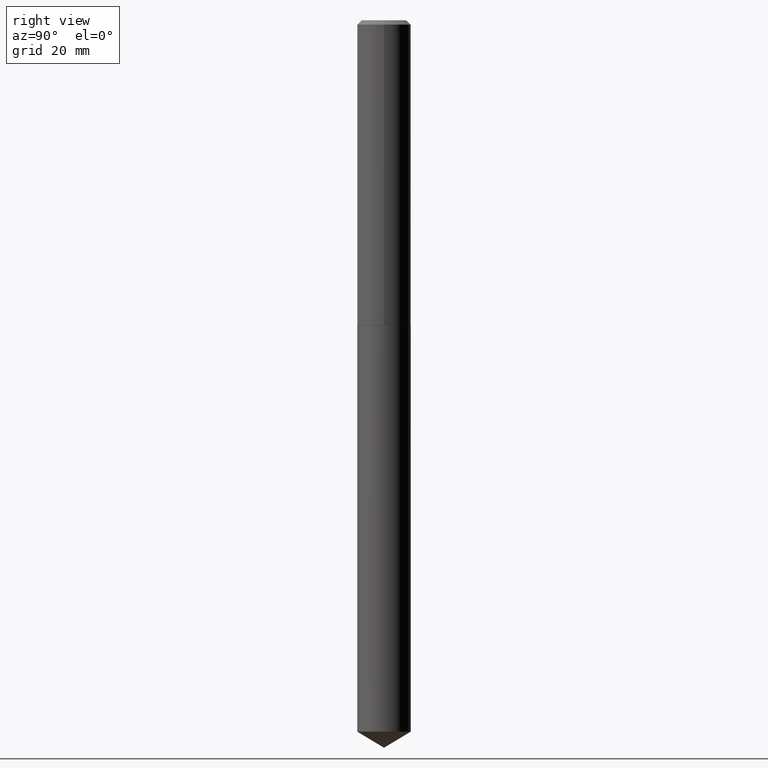
[diagram: clean part render]
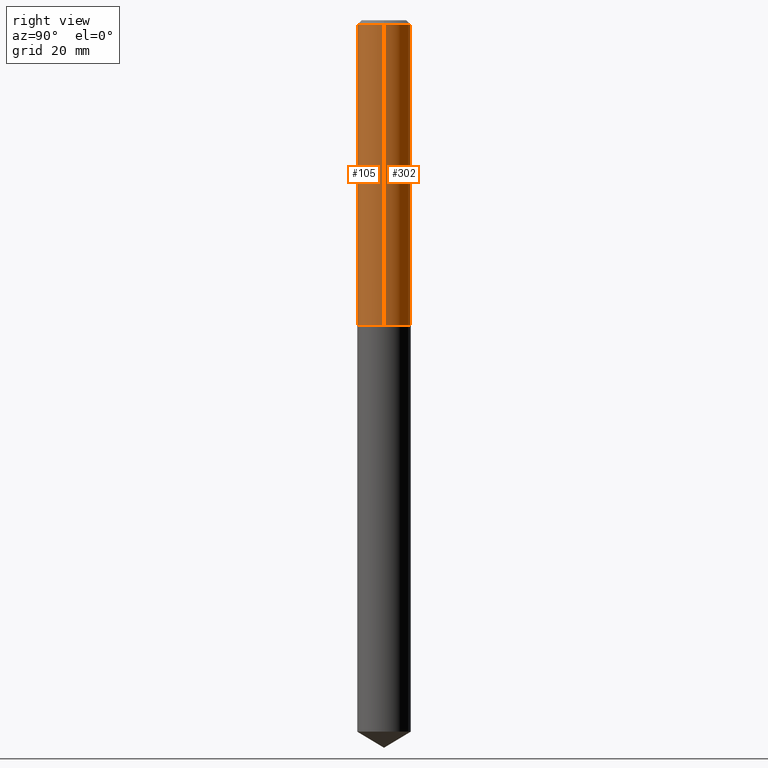
[diagram: same view with one multi-face feature highlighted, each face labeled with its STEP entity id]
A machine part, right view. The highlighted faces form ONE feature: a constant-radius fillet chain: 2 tangent blend faces with common blend radius 4.8997 mm. The faces share edges in the B-rep.
Their STEP definitions:
[1] entity #105 (Cylinder):
#14 = CARTESIAN_POINT ( 'NONE',  ( 0.1929000000000000992, -1.347013500525681457E-15, 9.406145000510366209E-30 ) ) ;
#15 = VERTEX_POINT ( 'NONE', #353 ) ;
#19 = CARTESIAN_POINT ( 'NONE',  ( 0.1928999999999999881, -1.456122292364529769E-15, -0.03125000000000022898 ) ) ;
#40 = CARTESIAN_POINT ( 'NONE',  ( 0.000000000000000000, 0.000000000000000000, 0.000000000000000000 ) ) ;
#43 = DIRECTION ( 'NONE',  ( -2.445468806185136597E-29, 3.491481338843145583E-15, 1.000000000000000000 ) ) ;
#47 = VECTOR ( 'NONE', #106, 39.37007874015748143 ) ;
#56 = EDGE_CURVE ( 'NONE', #15, #255, #285, .T. ) ;
#65 = VECTOR ( 'NONE', #379, 39.37007874015748143 ) ;
#79 = LINE ( 'NONE', #14, #47 ) ;
#94 = AXIS2_PLACEMENT_3D ( 'NONE', #40, #371, #100 ) ;
#99 = ORIENTED_EDGE ( 'NONE', *, *, #331, .T. ) ;
#100 = DIRECTION ( 'NONE',  ( 1.000000000000000000, -6.982962677686265922E-15, 4.876176775795936353E-29 ) ) ;
#105 = ADVANCED_FACE ( 'NONE', ( #189 ), #308, .T. ) ;
#106 = DIRECTION ( 'NONE',  ( -2.445468806185136877E-29, 3.491481338843145188E-15, 1.000000000000000000 ) ) ;
#135 = DIRECTION ( 'NONE',  ( 1.000000000000000000, -6.982962677686267499E-15, 0.000000000000000000 ) ) ;
#160 = CARTESIAN_POINT ( 'NONE',  ( 7.642090019328607917E-31, -1.091087918388491006E-16, -0.03125000000000022898 ) ) ;
#182 = EDGE_CURVE ( 'NONE', #378, #320, #368, .T. ) ;
#185 = AXIS2_PLACEMENT_3D ( 'NONE', #377, #43, #252 ) ;
#189 = FACE_OUTER_BOUND ( 'NONE', #289, .T. ) ;
#190 = ORIENTED_EDGE ( 'NONE', *, *, #56, .F. ) ;
#215 = AXIS2_PLACEMENT_3D ( 'NONE', #160, #245, #135 ) ;
#226 = ORIENTED_EDGE ( 'NONE', *, *, #324, .F. ) ;
#245 = DIRECTION ( 'NONE',  ( -2.445468806185136597E-29, 3.491481338843145583E-15, 1.000000000000000000 ) ) ;
#252 = DIRECTION ( 'NONE',  ( 1.000000000000000000, -6.982962677686270655E-15, 0.000000000000000000 ) ) ;
#254 = CARTESIAN_POINT ( 'NONE',  ( -0.1929000000000000992, 1.370636937281233963E-15, -9.488625789101718769E-30 ) ) ;
#255 = VERTEX_POINT ( 'NONE', #19 ) ;
#259 = LINE ( 'NONE', #254, #65 ) ;
#285 = CIRCLE ( 'NONE', #215, 0.1928999999999999881 ) ;
#287 = CARTESIAN_POINT ( 'NONE',  ( 0.1929000000000002379, -9.015353965026886084E-15, -2.196300000000000363 ) ) ;
#289 = EDGE_LOOP ( 'NONE', ( #226, #350, #99, #190 ) ) ;
#299 = CARTESIAN_POINT ( 'NONE',  ( -0.1929000000000002379, -6.297703527219967311E-15, -2.196300000000000363 ) ) ;
#308 = CYLINDRICAL_SURFACE ( 'NONE', #94, 0.1929000000000000992 ) ;
#320 = VERTEX_POINT ( 'NONE', #287 ) ;
#324 = EDGE_CURVE ( 'NONE', #378, #15, #259, .T. ) ;
#331 = EDGE_CURVE ( 'NONE', #320, #255, #79, .T. ) ;
#350 = ORIENTED_EDGE ( 'NONE', *, *, #182, .T. ) ;
#353 = CARTESIAN_POINT ( 'NONE',  ( -0.1928999999999999881, -2.518087690888790534E-15, -0.03125000000000022898 ) ) ;
#368 = CIRCLE ( 'NONE', #185, 0.1929000000000002379 ) ;
#371 = DIRECTION ( 'NONE',  ( -2.445468806185136597E-29, 3.491481338843145583E-15, 1.000000000000000000 ) ) ;
#377 = CARTESIAN_POINT ( 'NONE',  ( 5.370983139024416921E-29, -7.668340464501203443E-15, -2.196300000000000363 ) ) ;
#378 = VERTEX_POINT ( 'NONE', #299 ) ;
#379 = DIRECTION ( 'NONE',  ( -2.445468806185136877E-29, 3.491481338843145188E-15, 1.000000000000000000 ) ) ;
[2] entity #302 (Cylinder):
#11 = CARTESIAN_POINT ( 'NONE',  ( 5.370983139024416921E-29, -7.668340464501203443E-15, -2.196300000000000363 ) ) ;
#14 = CARTESIAN_POINT ( 'NONE',  ( 0.1929000000000000992, -1.347013500525681457E-15, 9.406145000510366209E-30 ) ) ;
#15 = VERTEX_POINT ( 'NONE', #353 ) ;
#18 = ORIENTED_EDGE ( 'NONE', *, *, #74, .T. ) ;
#19 = CARTESIAN_POINT ( 'NONE',  ( 0.1928999999999999881, -1.456122292364529769E-15, -0.03125000000000022898 ) ) ;
#41 = ORIENTED_EDGE ( 'NONE', *, *, #331, .F. ) ;
#47 = VECTOR ( 'NONE', #106, 39.37007874015748143 ) ;
#65 = VECTOR ( 'NONE', #379, 39.37007874015748143 ) ;
#74 = EDGE_CURVE ( 'NONE', #320, #378, #221, .T. ) ;
#79 = LINE ( 'NONE', #14, #47 ) ;
#93 = DIRECTION ( 'NONE',  ( 1.000000000000000000, -6.982962677686267499E-15, 0.000000000000000000 ) ) ;
#106 = DIRECTION ( 'NONE',  ( -2.445468806185136877E-29, 3.491481338843145188E-15, 1.000000000000000000 ) ) ;
#107 = EDGE_LOOP ( 'NONE', ( #18, #229, #376, #41 ) ) ;
#161 = CIRCLE ( 'NONE', #359, 0.1928999999999999881 ) ;
#163 = DIRECTION ( 'NONE',  ( -2.445468806185136597E-29, 3.491481338843145583E-15, 1.000000000000000000 ) ) ;
#171 = DIRECTION ( 'NONE',  ( -2.445468806185136597E-29, 3.491481338843145583E-15, 1.000000000000000000 ) ) ;
#195 = FACE_OUTER_BOUND ( 'NONE', #107, .T. ) ;
#221 = CIRCLE ( 'NONE', #389, 0.1929000000000002379 ) ;
#227 = AXIS2_PLACEMENT_3D ( 'NONE', #279, #171, #230 ) ;
#229 = ORIENTED_EDGE ( 'NONE', *, *, #324, .T. ) ;
#230 = DIRECTION ( 'NONE',  ( 1.000000000000000000, -6.982962677686265922E-15, 4.876176775795936353E-29 ) ) ;
#244 = CARTESIAN_POINT ( 'NONE',  ( 7.642090019328607917E-31, -1.091087918388491006E-16, -0.03125000000000022898 ) ) ;
#251 = DIRECTION ( 'NONE',  ( 1.000000000000000000, -6.982962677686270655E-15, 0.000000000000000000 ) ) ;
#254 = CARTESIAN_POINT ( 'NONE',  ( -0.1929000000000000992, 1.370636937281233963E-15, -9.488625789101718769E-30 ) ) ;
#255 = VERTEX_POINT ( 'NONE', #19 ) ;
#259 = LINE ( 'NONE', #254, #65 ) ;
#279 = CARTESIAN_POINT ( 'NONE',  ( 0.000000000000000000, 0.000000000000000000, 0.000000000000000000 ) ) ;
#287 = CARTESIAN_POINT ( 'NONE',  ( 0.1929000000000002379, -9.015353965026886084E-15, -2.196300000000000363 ) ) ;
#299 = CARTESIAN_POINT ( 'NONE',  ( -0.1929000000000002379, -6.297703527219967311E-15, -2.196300000000000363 ) ) ;
#302 = ADVANCED_FACE ( 'NONE', ( #195 ), #337, .T. ) ;
#320 = VERTEX_POINT ( 'NONE', #287 ) ;
#324 = EDGE_CURVE ( 'NONE', #378, #15, #259, .T. ) ;
#331 = EDGE_CURVE ( 'NONE', #320, #255, #79, .T. ) ;
#337 = CYLINDRICAL_SURFACE ( 'NONE', #227, 0.1929000000000000992 ) ;
#353 = CARTESIAN_POINT ( 'NONE',  ( -0.1928999999999999881, -2.518087690888790534E-15, -0.03125000000000022898 ) ) ;
#359 = AXIS2_PLACEMENT_3D ( 'NONE', #244, #363, #93 ) ;
#363 = DIRECTION ( 'NONE',  ( -2.445468806185136597E-29, 3.491481338843145583E-15, 1.000000000000000000 ) ) ;
#376 = ORIENTED_EDGE ( 'NONE', *, *, #388, .F. ) ;
#378 = VERTEX_POINT ( 'NONE', #299 ) ;
#379 = DIRECTION ( 'NONE',  ( -2.445468806185136877E-29, 3.491481338843145188E-15, 1.000000000000000000 ) ) ;
#388 = EDGE_CURVE ( 'NONE', #255, #15, #161, .T. ) ;
#389 = AXIS2_PLACEMENT_3D ( 'NONE', #11, #163, #251 ) ;